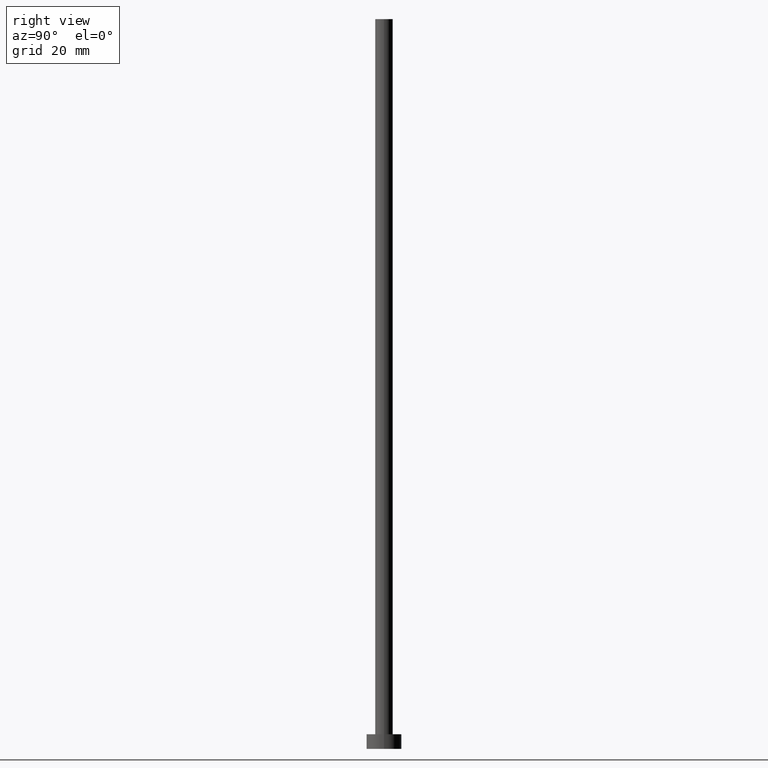
[diagram: clean part render]
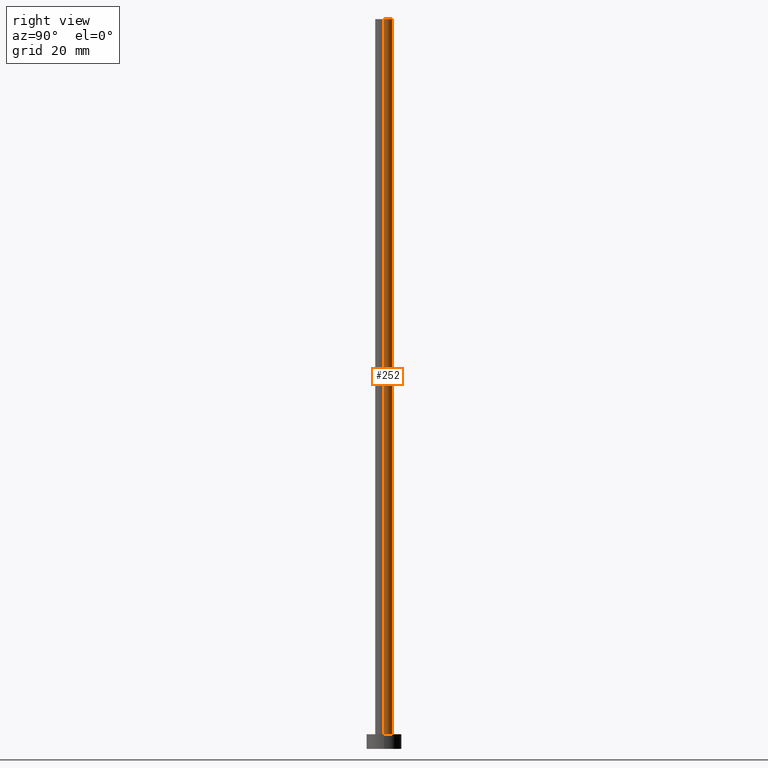
[diagram: same view with one face highlighted and labeled with its STEP entity id]
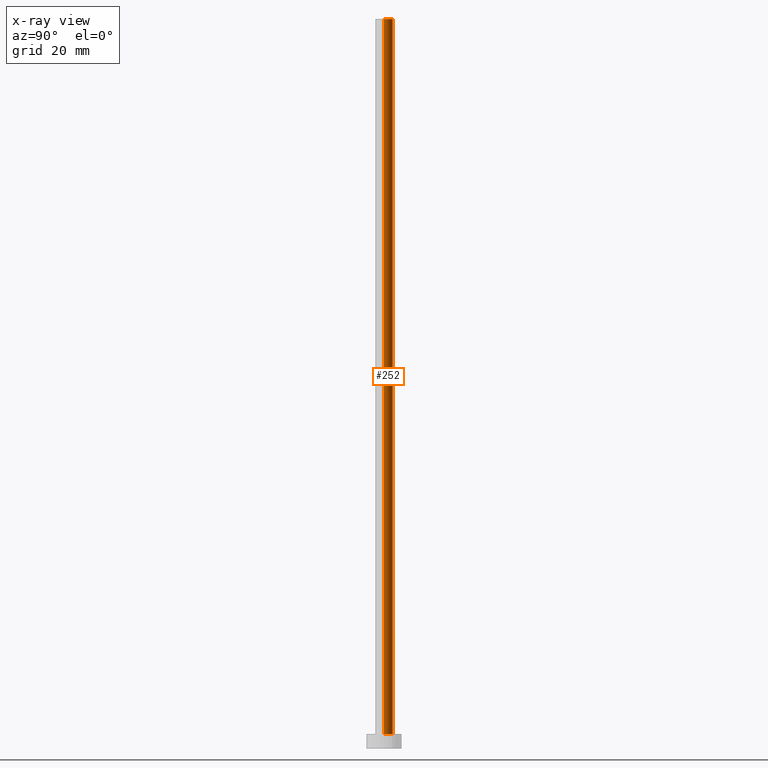
[diagram: x-ray of the same camera — body ghosted, the highlighted face saturated]
A machine part, right view. The second image highlights one B-rep face of the part: STEP entity #252.
The next image is the same camera in x-ray: the body ghosted, the highlighted face saturated — about 0% of this face is hidden behind the body in this view.
In plain terms, the highlighted cylindrical surface (edge-blend (fillet) strip) has radius 3 mm, axis along (-0, -0, -1).
Its self-contained STEP definition (entity closure, byte-faithful):
#8 = ORIENTED_EDGE ( 'NONE', *, *, #140, .T. ) ;
#9 = CARTESIAN_POINT ( 'NONE',  ( 3.000000000000000444, 3.673940397442060361E-16, 250.0000000000000000 ) ) ;
#10 = CIRCLE ( 'NONE', #151, 3.000000000000000444 ) ;
#13 = DIRECTION ( 'NONE',  ( 0.000000000000000000, 0.000000000000000000, 1.000000000000000000 ) ) ;
#14 = CARTESIAN_POINT ( 'NONE',  ( -3.000000000000000444, 0.000000000000000000, 250.0000000000000000 ) ) ;
#15 = VECTOR ( 'NONE', #228, 1000.000000000000000 ) ;
#24 = VERTEX_POINT ( 'NONE', #243 ) ;
#27 = ORIENTED_EDGE ( 'NONE', *, *, #191, .F. ) ;
#31 = DIRECTION ( 'NONE',  ( -0.000000000000000000, -0.000000000000000000, -1.000000000000000000 ) ) ;
#70 = LINE ( 'NONE', #9, #226 ) ;
#73 = ORIENTED_EDGE ( 'NONE', *, *, #248, .F. ) ;
#86 = DIRECTION ( 'NONE',  ( 1.000000000000000000, 0.000000000000000000, 0.000000000000000000 ) ) ;
#88 = CYLINDRICAL_SURFACE ( 'NONE', #158, 3.000000000000000444 ) ;
#91 = DIRECTION ( 'NONE',  ( -1.000000000000000000, 0.000000000000000000, 0.000000000000000000 ) ) ;
#97 = VERTEX_POINT ( 'NONE', #156 ) ;
#111 = DIRECTION ( 'NONE',  ( 0.000000000000000000, 0.000000000000000000, 1.000000000000000000 ) ) ;
#126 = CIRCLE ( 'NONE', #208, 3.000000000000000444 ) ;
#129 = CARTESIAN_POINT ( 'NONE',  ( 3.000000000000000444, 3.673940397442060361E-16, 250.0000000000000000 ) ) ;
#135 = CARTESIAN_POINT ( 'NONE',  ( 0.000000000000000000, 0.000000000000000000, 250.0000000000000000 ) ) ;
#140 = EDGE_CURVE ( 'NONE', #201, #24, #10, .T. ) ;
#151 = AXIS2_PLACEMENT_3D ( 'NONE', #254, #111, #250 ) ;
#156 = CARTESIAN_POINT ( 'NONE',  ( -3.000000000000000444, 0.000000000000000000, 250.0000000000000000 ) ) ;
#158 = AXIS2_PLACEMENT_3D ( 'NONE', #229, #192, #91 ) ;
#173 = EDGE_LOOP ( 'NONE', ( #73, #187, #8, #27 ) ) ;
#177 = EDGE_CURVE ( 'NONE', #235, #201, #70, .T. ) ;
#187 = ORIENTED_EDGE ( 'NONE', *, *, #177, .T. ) ;
#191 = EDGE_CURVE ( 'NONE', #97, #24, #246, .T. ) ;
#192 = DIRECTION ( 'NONE',  ( -0.000000000000000000, -0.000000000000000000, -1.000000000000000000 ) ) ;
#193 = CARTESIAN_POINT ( 'NONE',  ( 3.000000000000000444, 3.673940397442060361E-16, 5.000000000000000000 ) ) ;
#194 = FACE_OUTER_BOUND ( 'NONE', #173, .T. ) ;
#201 = VERTEX_POINT ( 'NONE', #193 ) ;
#208 = AXIS2_PLACEMENT_3D ( 'NONE', #135, #13, #86 ) ;
#226 = VECTOR ( 'NONE', #31, 1000.000000000000000 ) ;
#228 = DIRECTION ( 'NONE',  ( -0.000000000000000000, -0.000000000000000000, -1.000000000000000000 ) ) ;
#229 = CARTESIAN_POINT ( 'NONE',  ( 0.000000000000000000, 0.000000000000000000, 250.0000000000000000 ) ) ;
#235 = VERTEX_POINT ( 'NONE', #129 ) ;
#243 = CARTESIAN_POINT ( 'NONE',  ( -3.000000000000000444, 0.000000000000000000, 5.000000000000000000 ) ) ;
#246 = LINE ( 'NONE', #14, #15 ) ;
#248 = EDGE_CURVE ( 'NONE', #235, #97, #126, .T. ) ;
#250 = DIRECTION ( 'NONE',  ( 1.000000000000000000, 0.000000000000000000, 0.000000000000000000 ) ) ;
#252 = ADVANCED_FACE ( 'NONE', ( #194 ), #88, .T. ) ;
#254 = CARTESIAN_POINT ( 'NONE',  ( 0.000000000000000000, 0.000000000000000000, 5.000000000000000000 ) ) ;